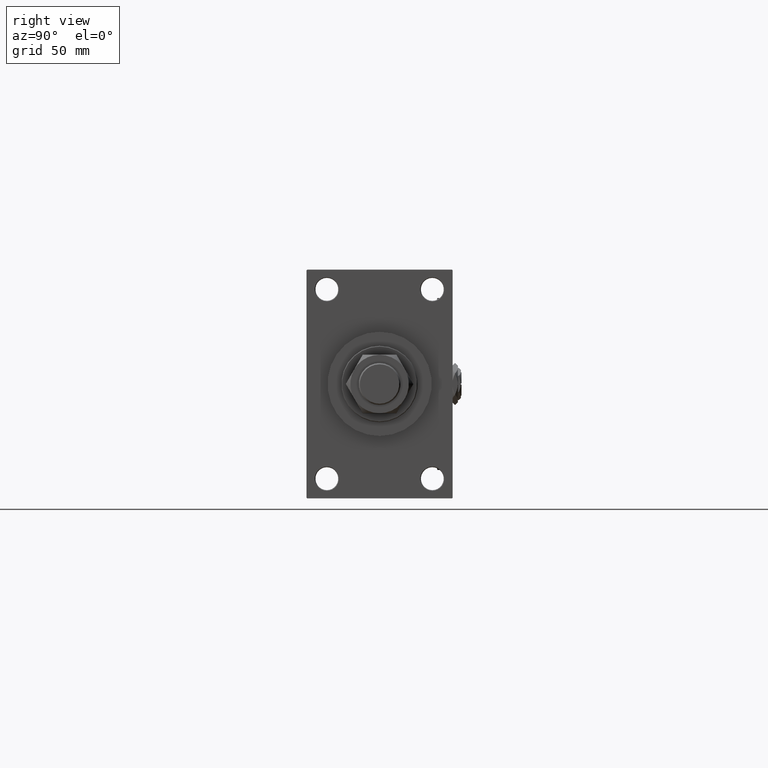
[diagram: clean part render]
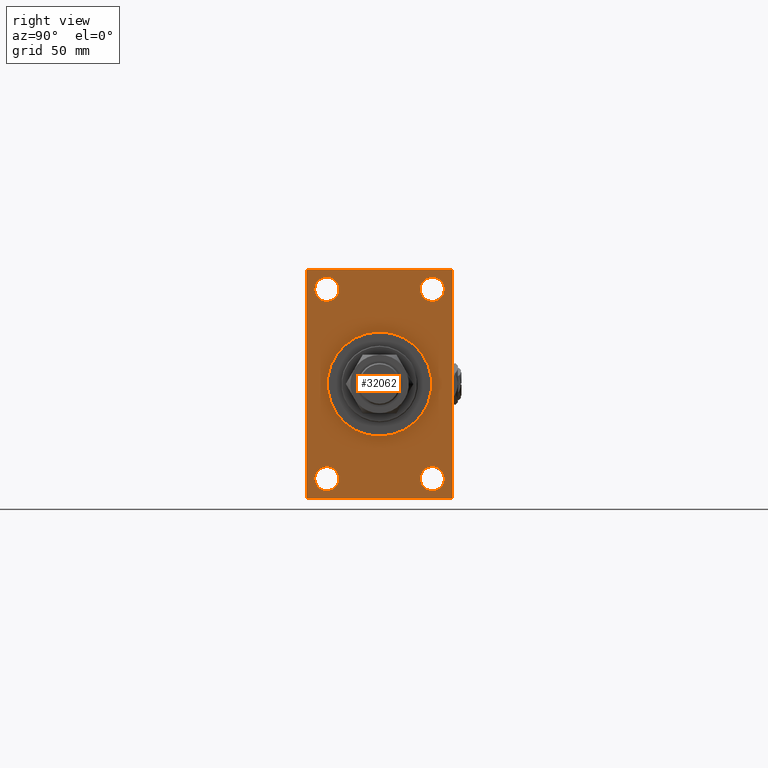
[diagram: same view with one face highlighted and labeled with its STEP entity id]
A machine part, right view. The second image highlights one B-rep face of the part: STEP entity #32062.
In plain terms, the highlighted planar face has unit normal (-1, 0, 0).
Its self-contained STEP definition (entity closure, byte-faithful):
#51 = EDGE_LOOP ( 'NONE', ( #30898, #29869 ) ) ;
#94 = CARTESIAN_POINT ( 'NONE',  ( 388.9999999999999432, 41.50000000000000711, 74.50000000000001421 ) ) ;
#334 = CIRCLE ( 'NONE', #25443, 9.500000000000008882 ) ;
#727 = DIRECTION ( 'NONE',  ( 0.000000000000000000, 0.000000000000000000, 1.000000000000000000 ) ) ;
#1252 = FACE_BOUND ( 'NONE', #20554, .T. ) ;
#1292 = VERTEX_POINT ( 'NONE', #23693 ) ;
#1509 = PLANE ( 'NONE',  #8988 ) ;
#1810 = AXIS2_PLACEMENT_3D ( 'NONE', #15005, #52473, #31551 ) ;
#2138 = ORIENTED_EDGE ( 'NONE', *, *, #26477, .T. ) ;
#2637 = CARTESIAN_POINT ( 'NONE',  ( 388.9999999999999432, 41.50000000000000711, -84.00000000000000000 ) ) ;
#3552 = AXIS2_PLACEMENT_3D ( 'NONE', #24369, #12966, #25442 ) ;
#3634 = EDGE_LOOP ( 'NONE', ( #28098, #53075 ) ) ;
#4031 = EDGE_CURVE ( 'NONE', #25436, #52311, #37184, .T. ) ;
#4318 = ORIENTED_EDGE ( 'NONE', *, *, #10105, .T. ) ;
#4560 = VECTOR ( 'NONE', #38325, 1000.000000000000114 ) ;
#5204 = CIRCLE ( 'NONE', #41607, 41.00000000000000000 ) ;
#5365 = ORIENTED_EDGE ( 'NONE', *, *, #44367, .T. ) ;
#5373 = CARTESIAN_POINT ( 'NONE',  ( 388.9999999999999432, -41.49999999999999289, 65.00000000000000000 ) ) ;
#5604 = LINE ( 'NONE', #13988, #44572 ) ;
#5820 = DIRECTION ( 'NONE',  ( 0.000000000000000000, -1.000000000000000000, -1.206764157201257045E-16 ) ) ;
#6222 = EDGE_CURVE ( 'NONE', #1292, #50817, #5204, .T. ) ;
#6420 = DIRECTION ( 'NONE',  ( 1.000000000000000000, 0.000000000000000000, 0.000000000000000000 ) ) ;
#6810 = EDGE_CURVE ( 'NONE', #53502, #11260, #8676, .T. ) ;
#6851 = EDGE_CURVE ( 'NONE', #20608, #53485, #50026, .T. ) ;
#7891 = EDGE_CURVE ( 'NONE', #52311, #25436, #11335, .T. ) ;
#7892 = EDGE_CURVE ( 'NONE', #15150, #30611, #27791, .T. ) ;
#8275 = LINE ( 'NONE', #20474, #18287 ) ;
#8530 = DIRECTION ( 'NONE',  ( 0.000000000000000000, 3.854941057726238467E-17, -1.000000000000000000 ) ) ;
#8676 = CIRCLE ( 'NONE', #39003, 9.500000000000008882 ) ;
#8689 = DIRECTION ( 'NONE',  ( -1.000000000000000000, 0.000000000000000000, -0.000000000000000000 ) ) ;
#8988 = AXIS2_PLACEMENT_3D ( 'NONE', #50642, #14238, #18022 ) ;
#10105 = EDGE_CURVE ( 'NONE', #24911, #32887, #36531, .T. ) ;
#10156 = FACE_BOUND ( 'NONE', #51, .T. ) ;
#10204 = DIRECTION ( 'NONE',  ( 0.000000000000000000, 0.000000000000000000, -1.000000000000000000 ) ) ;
#10292 = DIRECTION ( 'NONE',  ( 0.000000000000000000, 0.000000000000000000, 1.000000000000000000 ) ) ;
#10437 = EDGE_LOOP ( 'NONE', ( #30904, #38391 ) ) ;
#10457 = VECTOR ( 'NONE', #5820, 1000.000000000000000 ) ;
#11260 = VERTEX_POINT ( 'NONE', #20118 ) ;
#11335 = CIRCLE ( 'NONE', #24310, 9.500000000000008882 ) ;
#11846 = DIRECTION ( 'NONE',  ( 0.000000000000000000, 0.000000000000000000, 1.000000000000000000 ) ) ;
#12934 = CARTESIAN_POINT ( 'NONE',  ( 388.9999999999999432, -57.00000000000002132, -90.00000000000001421 ) ) ;
#12966 = DIRECTION ( 'NONE',  ( -1.000000000000000000, 0.000000000000000000, -0.000000000000000000 ) ) ;
#13084 = CARTESIAN_POINT ( 'NONE',  ( 388.9999999999999432, 56.99999999999997158, 89.99999999999998579 ) ) ;
#13092 = DIRECTION ( 'NONE',  ( -0.000000000000000000, 0.7071067811865573427, 0.7071067811865378028 ) ) ;
#13926 = CARTESIAN_POINT ( 'NONE',  ( 388.9999999999999432, -41.49999999999999289, 84.00000000000001421 ) ) ;
#13988 = CARTESIAN_POINT ( 'NONE',  ( 388.9999999999999432, 57.49999999999997158, 89.99999999999998579 ) ) ;
#14238 = DIRECTION ( 'NONE',  ( -1.000000000000000000, 0.000000000000000000, -0.000000000000000000 ) ) ;
#14903 = CARTESIAN_POINT ( 'NONE',  ( 388.9999999999999432, -41.49999999999999289, 74.50000000000001421 ) ) ;
#15005 = CARTESIAN_POINT ( 'NONE',  ( 388.9999999999999432, -41.49999999999999289, -74.49999999999998579 ) ) ;
#15150 = VERTEX_POINT ( 'NONE', #13926 ) ;
#15522 = CARTESIAN_POINT ( 'NONE',  ( 388.9999999999999432, 41.50000000000000711, 65.00000000000000000 ) ) ;
#16623 = CARTESIAN_POINT ( 'NONE',  ( 388.9999999999999432, 5.021051876504148963E-15, -41.00000000000000000 ) ) ;
#16762 = VERTEX_POINT ( 'NONE', #42088 ) ;
#16992 = CARTESIAN_POINT ( 'NONE',  ( 388.9999999999999432, -41.49999999999999289, 74.50000000000001421 ) ) ;
#17388 = CARTESIAN_POINT ( 'NONE',  ( 388.9999999999999432, -41.49999999999999289, -83.99999999999998579 ) ) ;
#17770 = FACE_BOUND ( 'NONE', #26414, .T. ) ;
#18022 = DIRECTION ( 'NONE',  ( -0.000000000000000000, 0.000000000000000000, 1.000000000000000000 ) ) ;
#18281 = CIRCLE ( 'NONE', #3552, 9.500000000000008882 ) ;
#18287 = VECTOR ( 'NONE', #8530, 1000.000000000000000 ) ;
#18533 = DIRECTION ( 'NONE',  ( 0.000000000000000000, 0.000000000000000000, 1.000000000000000000 ) ) ;
#18631 = EDGE_CURVE ( 'NONE', #26249, #40735, #48506, .T. ) ;
#19402 = CARTESIAN_POINT ( 'NONE',  ( 388.9999999999999432, -57.50000000000002132, -89.50000000000002842 ) ) ;
#19619 = CARTESIAN_POINT ( 'NONE',  ( 388.9999999999999432, -57.00000000000007105, 89.99999999999997158 ) ) ;
#20067 = DIRECTION ( 'NONE',  ( 0.000000000000000000, 0.000000000000000000, -1.000000000000000000 ) ) ;
#20118 = CARTESIAN_POINT ( 'NONE',  ( 388.9999999999999432, 41.50000000000000711, 84.00000000000001421 ) ) ;
#20438 = EDGE_CURVE ( 'NONE', #40735, #26249, #25174, .T. ) ;
#20466 = EDGE_CURVE ( 'NONE', #20608, #41331, #47339, .T. ) ;
#20474 = CARTESIAN_POINT ( 'NONE',  ( 388.9999999999999432, 57.49999999999997158, 89.99999999999998579 ) ) ;
#20520 = CARTESIAN_POINT ( 'NONE',  ( 388.9999999999999432, 41.50000000000000711, -74.50000000000000000 ) ) ;
#20554 = EDGE_LOOP ( 'NONE', ( #28956, #40971 ) ) ;
#20608 = VERTEX_POINT ( 'NONE', #47506 ) ;
#21471 = LINE ( 'NONE', #13084, #4560 ) ;
#21596 = DIRECTION ( 'NONE',  ( 0.000000000000000000, 0.000000000000000000, -1.000000000000000000 ) ) ;
#22102 = FACE_BOUND ( 'NONE', #10437, .T. ) ;
#23693 = CARTESIAN_POINT ( 'NONE',  ( 388.9999999999999432, 0.000000000000000000, 41.00000000000000000 ) ) ;
#23864 = DIRECTION ( 'NONE',  ( -1.000000000000000000, 0.000000000000000000, -0.000000000000000000 ) ) ;
#24310 = AXIS2_PLACEMENT_3D ( 'NONE', #20520, #28929, #11846 ) ;
#24330 = AXIS2_PLACEMENT_3D ( 'NONE', #45254, #24608, #21596 ) ;
#24366 = VECTOR ( 'NONE', #20067, 1000.000000000000000 ) ;
#24369 = CARTESIAN_POINT ( 'NONE',  ( 388.9999999999999432, 41.50000000000000711, 74.50000000000001421 ) ) ;
#24608 = DIRECTION ( 'NONE',  ( 1.000000000000000000, 0.000000000000000000, 0.000000000000000000 ) ) ;
#24911 = VERTEX_POINT ( 'NONE', #19619 ) ;
#25051 = CARTESIAN_POINT ( 'NONE',  ( 388.9999999999999432, -41.49999999999999289, -64.99999999999997158 ) ) ;
#25095 = AXIS2_PLACEMENT_3D ( 'NONE', #47326, #23864, #18533 ) ;
#25174 = CIRCLE ( 'NONE', #1810, 9.500000000000008882 ) ;
#25436 = VERTEX_POINT ( 'NONE', #47245 ) ;
#25442 = DIRECTION ( 'NONE',  ( 0.000000000000000000, 0.000000000000000000, 1.000000000000000000 ) ) ;
#25443 = AXIS2_PLACEMENT_3D ( 'NONE', #14903, #43142, #10292 ) ;
#26249 = VERTEX_POINT ( 'NONE', #17388 ) ;
#26414 = EDGE_LOOP ( 'NONE', ( #40726, #28697 ) ) ;
#26477 = EDGE_CURVE ( 'NONE', #16762, #47175, #21471, .T. ) ;
#26613 = ORIENTED_EDGE ( 'NONE', *, *, #6851, .T. ) ;
#27630 = AXIS2_PLACEMENT_3D ( 'NONE', #28489, #8689, #42324 ) ;
#27791 = CIRCLE ( 'NONE', #35579, 9.500000000000008882 ) ;
#27865 = ORIENTED_EDGE ( 'NONE', *, *, #43699, .F. ) ;
#28098 = ORIENTED_EDGE ( 'NONE', *, *, #28906, .T. ) ;
#28463 = VECTOR ( 'NONE', #53204, 1000.000000000000114 ) ;
#28489 = CARTESIAN_POINT ( 'NONE',  ( 388.9999999999999432, 41.50000000000000711, -74.50000000000000000 ) ) ;
#28697 = ORIENTED_EDGE ( 'NONE', *, *, #46655, .T. ) ;
#28906 = EDGE_CURVE ( 'NONE', #30611, #15150, #334, .T. ) ;
#28926 = DIRECTION ( 'NONE',  ( -0.000000000000000000, -0.7071067811865524577, -0.7071067811865426878 ) ) ;
#28929 = DIRECTION ( 'NONE',  ( -1.000000000000000000, 0.000000000000000000, -0.000000000000000000 ) ) ;
#28956 = ORIENTED_EDGE ( 'NONE', *, *, #18631, .T. ) ;
#29557 = CARTESIAN_POINT ( 'NONE',  ( 388.9999999999999432, -57.50000000000002132, 89.99999999999997158 ) ) ;
#29558 = CIRCLE ( 'NONE', #24330, 41.00000000000000000 ) ;
#29869 = ORIENTED_EDGE ( 'NONE', *, *, #4031, .T. ) ;
#30538 = DIRECTION ( 'NONE',  ( 0.000000000000000000, -1.000000000000000000, -1.206764157201257291E-16 ) ) ;
#30611 = VERTEX_POINT ( 'NONE', #5373 ) ;
#30898 = ORIENTED_EDGE ( 'NONE', *, *, #7891, .T. ) ;
#30904 = ORIENTED_EDGE ( 'NONE', *, *, #6222, .F. ) ;
#31551 = DIRECTION ( 'NONE',  ( 0.000000000000000000, 0.000000000000000000, 1.000000000000000000 ) ) ;
#32062 = ADVANCED_FACE ( 'NONE', ( #38411, #1252, #10156, #17770, #22102, #38674 ), #1509, .F. ) ;
#32453 = CARTESIAN_POINT ( 'NONE',  ( 388.9999999999999432, -57.50000000000002132, 89.50000000000002842 ) ) ;
#32691 = ORIENTED_EDGE ( 'NONE', *, *, #38679, .T. ) ;
#32887 = VERTEX_POINT ( 'NONE', #50849 ) ;
#33546 = EDGE_CURVE ( 'NONE', #47175, #24911, #5604, .T. ) ;
#33829 = ORIENTED_EDGE ( 'NONE', *, *, #20466, .F. ) ;
#35579 = AXIS2_PLACEMENT_3D ( 'NONE', #16992, #49309, #727 ) ;
#36531 = LINE ( 'NONE', #32453, #40871 ) ;
#37184 = CIRCLE ( 'NONE', #27630, 9.500000000000008882 ) ;
#37796 = DIRECTION ( 'NONE',  ( -1.000000000000000000, 0.000000000000000000, -0.000000000000000000 ) ) ;
#38325 = DIRECTION ( 'NONE',  ( 0.000000000000000000, -0.7071067811865474617, 0.7071067811865474617 ) ) ;
#38391 = ORIENTED_EDGE ( 'NONE', *, *, #43371, .F. ) ;
#38411 = FACE_BOUND ( 'NONE', #3634, .T. ) ;
#38674 = FACE_OUTER_BOUND ( 'NONE', #47627, .T. ) ;
#38679 = EDGE_CURVE ( 'NONE', #44664, #41331, #48855, .T. ) ;
#39003 = AXIS2_PLACEMENT_3D ( 'NONE', #94, #37796, #46206 ) ;
#39446 = CARTESIAN_POINT ( 'NONE',  ( 388.9999999999999432, 57.49999999999997868, -89.49999999999995737 ) ) ;
#40689 = CARTESIAN_POINT ( 'NONE',  ( 388.9999999999999432, -57.00000000000002132, -90.00000000000001421 ) ) ;
#40726 = ORIENTED_EDGE ( 'NONE', *, *, #6810, .T. ) ;
#40735 = VERTEX_POINT ( 'NONE', #25051 ) ;
#40871 = VECTOR ( 'NONE', #28926, 1000.000000000000000 ) ;
#40971 = ORIENTED_EDGE ( 'NONE', *, *, #20438, .T. ) ;
#41331 = VERTEX_POINT ( 'NONE', #12934 ) ;
#41607 = AXIS2_PLACEMENT_3D ( 'NONE', #47406, #6420, #10204 ) ;
#41815 = ORIENTED_EDGE ( 'NONE', *, *, #33546, .T. ) ;
#42088 = CARTESIAN_POINT ( 'NONE',  ( 388.9999999999999432, 57.49999999999997158, 89.49999999999998579 ) ) ;
#42324 = DIRECTION ( 'NONE',  ( 0.000000000000000000, 0.000000000000000000, 1.000000000000000000 ) ) ;
#43142 = DIRECTION ( 'NONE',  ( -1.000000000000000000, 0.000000000000000000, -0.000000000000000000 ) ) ;
#43350 = VECTOR ( 'NONE', #13092, 1000.000000000000000 ) ;
#43371 = EDGE_CURVE ( 'NONE', #50817, #1292, #29558, .T. ) ;
#43699 = EDGE_CURVE ( 'NONE', #16762, #53485, #8275, .T. ) ;
#44367 = EDGE_CURVE ( 'NONE', #32887, #44664, #50210, .T. ) ;
#44572 = VECTOR ( 'NONE', #30538, 1000.000000000000000 ) ;
#44664 = VERTEX_POINT ( 'NONE', #19402 ) ;
#45254 = CARTESIAN_POINT ( 'NONE',  ( 388.9999999999999432, 0.000000000000000000, 0.000000000000000000 ) ) ;
#46206 = DIRECTION ( 'NONE',  ( 0.000000000000000000, 0.000000000000000000, 1.000000000000000000 ) ) ;
#46655 = EDGE_CURVE ( 'NONE', #11260, #53502, #18281, .T. ) ;
#47175 = VERTEX_POINT ( 'NONE', #50907 ) ;
#47245 = CARTESIAN_POINT ( 'NONE',  ( 388.9999999999999432, 41.50000000000000711, -64.99999999999998579 ) ) ;
#47326 = CARTESIAN_POINT ( 'NONE',  ( 388.9999999999999432, -41.49999999999999289, -74.49999999999998579 ) ) ;
#47339 = LINE ( 'NONE', #47593, #10457 ) ;
#47406 = CARTESIAN_POINT ( 'NONE',  ( 388.9999999999999432, 0.000000000000000000, 0.000000000000000000 ) ) ;
#47506 = CARTESIAN_POINT ( 'NONE',  ( 388.9999999999999432, 56.99999999999997868, -90.00000000000000000 ) ) ;
#47593 = CARTESIAN_POINT ( 'NONE',  ( 388.9999999999999432, 57.49999999999997868, -90.00000000000000000 ) ) ;
#47627 = EDGE_LOOP ( 'NONE', ( #5365, #32691, #33829, #26613, #27865, #2138, #41815, #4318 ) ) ;
#48506 = CIRCLE ( 'NONE', #25095, 9.500000000000008882 ) ;
#48855 = LINE ( 'NONE', #40689, #28463 ) ;
#49309 = DIRECTION ( 'NONE',  ( -1.000000000000000000, 0.000000000000000000, -0.000000000000000000 ) ) ;
#50026 = LINE ( 'NONE', #50287, #43350 ) ;
#50210 = LINE ( 'NONE', #29557, #24366 ) ;
#50287 = CARTESIAN_POINT ( 'NONE',  ( 388.9999999999999432, 57.49999999999997868, -89.50000000000001421 ) ) ;
#50642 = CARTESIAN_POINT ( 'NONE',  ( 388.9999999999999432, 0.000000000000000000, 0.000000000000000000 ) ) ;
#50817 = VERTEX_POINT ( 'NONE', #16623 ) ;
#50849 = CARTESIAN_POINT ( 'NONE',  ( 388.9999999999999432, -57.50000000000002132, 89.50000000000002842 ) ) ;
#50907 = CARTESIAN_POINT ( 'NONE',  ( 388.9999999999999432, 56.99999999999997158, 89.99999999999998579 ) ) ;
#52311 = VERTEX_POINT ( 'NONE', #2637 ) ;
#52473 = DIRECTION ( 'NONE',  ( -1.000000000000000000, 0.000000000000000000, -0.000000000000000000 ) ) ;
#53075 = ORIENTED_EDGE ( 'NONE', *, *, #7892, .T. ) ;
#53204 = DIRECTION ( 'NONE',  ( 0.000000000000000000, 0.7071067811865965336, -0.7071067811864985009 ) ) ;
#53485 = VERTEX_POINT ( 'NONE', #39446 ) ;
#53502 = VERTEX_POINT ( 'NONE', #15522 ) ;